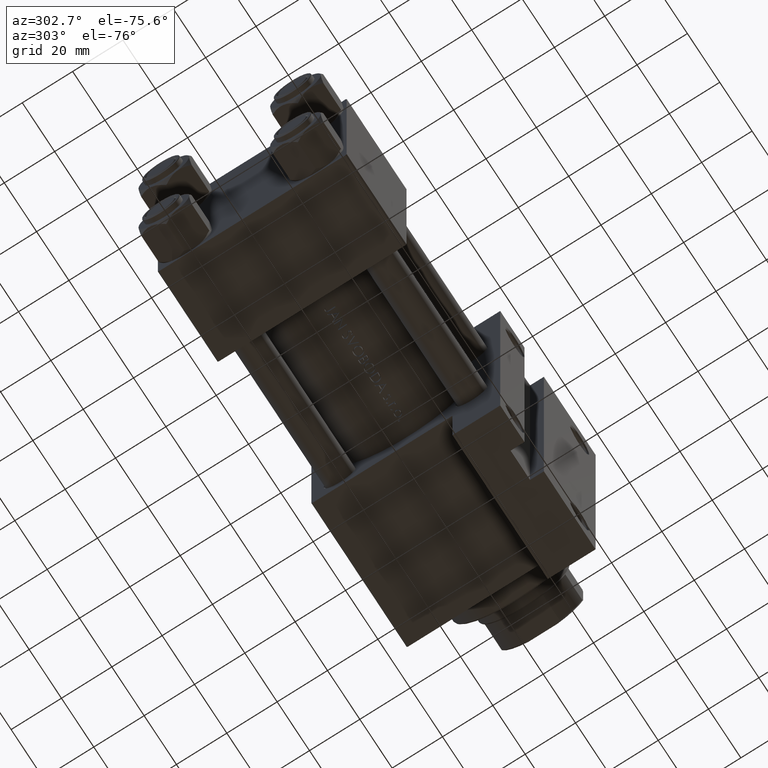
[diagram: clean part render]
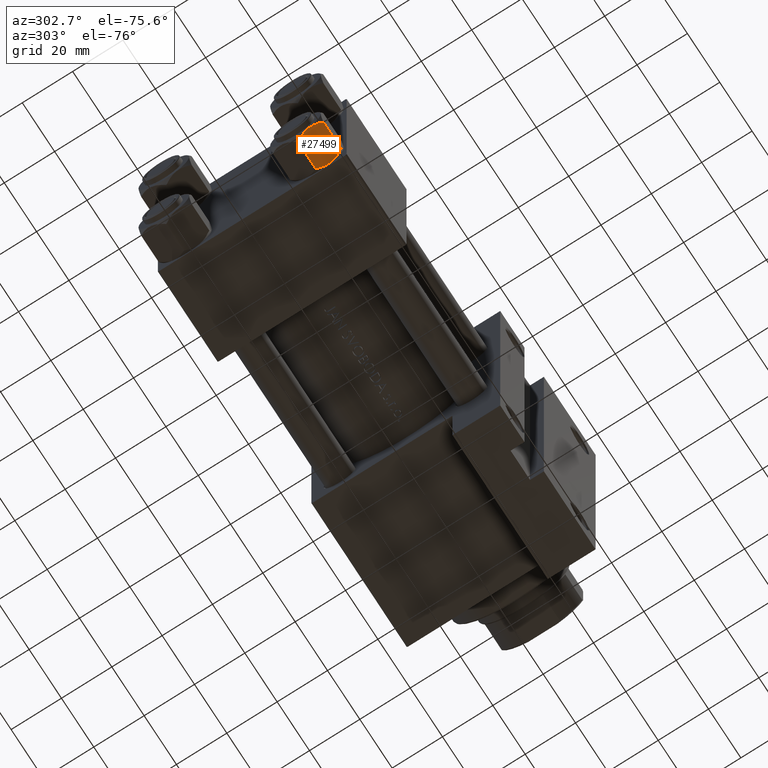
[diagram: same view with one face highlighted and labeled with its STEP entity id]
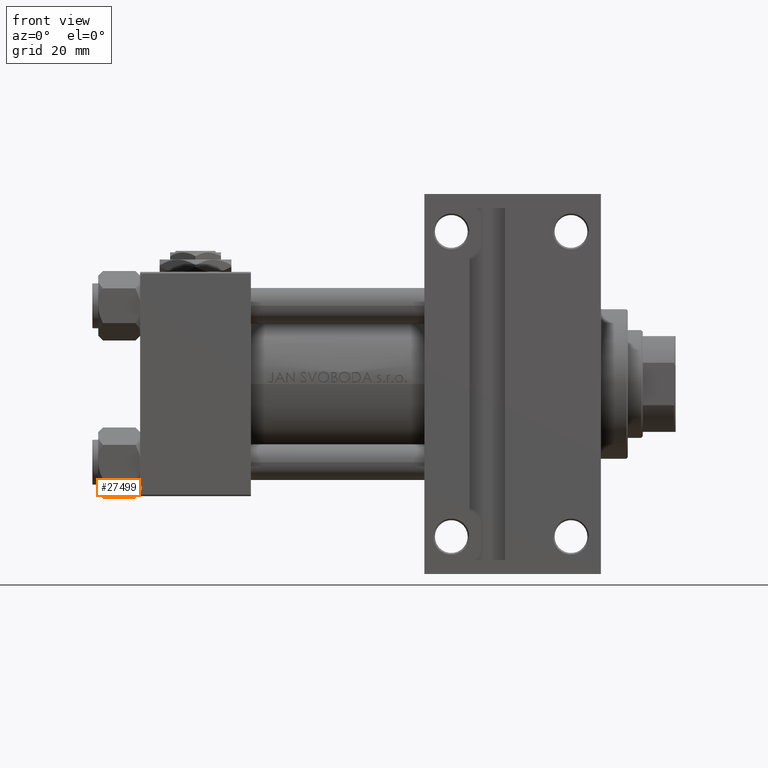
[diagram: same view with one face highlighted and labeled with its STEP entity id]
A machine part, auxiliary view. The second image highlights one B-rep face of the part: STEP entity #27499.
A second angle (front view) of the same face is appended — the face is thin or edge-on in the first view.
In plain terms, the highlighted planar face has unit normal (-0, 0.5, 0.866).
Its self-contained STEP definition (entity closure, byte-faithful):
#475 = CARTESIAN_POINT ( 'NONE',  ( 8.969430103550381617, 4.590921729663312689, 3.523657060577888622E-15 ) ) ;
#1361 = CARTESIAN_POINT ( 'NONE',  ( 5.810000000000000497, 10.06321519197518022, -12.44321519197518455 ) ) ;
#1862 = CARTESIAN_POINT ( 'NONE',  ( 8.715000000000005187, 5.031607595987590109, -14.00000000000000000 ) ) ;
#2401 = DIRECTION ( 'NONE',  ( -0.000000000000000000, -0.000000000000000000, 1.000000000000000000 ) ) ;
#3016 = B_SPLINE_CURVE_WITH_KNOTS ( 'NONE', 3,
 ( #12727, #9957, #13227, #32334, #28323, #32084 ),
 .UNSPECIFIED., .F., .F.,
 ( 4, 2, 4 ),
 ( 0.006022845781655588107, 0.009013049135303636758, 0.01200325248895168367 ),
 .UNSPECIFIED. ) ;
#4022 = CARTESIAN_POINT ( 'NONE',  ( 11.62000000000000099, -1.813166800014576593E-15, -14.00000000000000000 ) ) ;
#4417 = ORIENTED_EDGE ( 'NONE', *, *, #27831, .F. ) ;
#4478 = CARTESIAN_POINT ( 'NONE',  ( 11.62000000000000099, -1.924525737834042474E-15, -1.556784808024813893 ) ) ;
#4633 = CARTESIAN_POINT ( 'NONE',  ( 7.455303369716807182, 7.213466161761384221, -13.69973261901325934 ) ) ;
#4725 = VERTEX_POINT ( 'NONE', #15000 ) ;
#5451 = EDGE_CURVE ( 'NONE', #4725, #40461, #3016, .T. ) ;
#5541 = VERTEX_POINT ( 'NONE', #7428 ) ;
#5668 = AXIS2_PLACEMENT_3D ( 'NONE', #45379, #10940, #19002 ) ;
#6732 = CARTESIAN_POINT ( 'NONE',  ( 11.62000000000000099, -1.924525737834042474E-15, -1.556784808024813893 ) ) ;
#7428 = CARTESIAN_POINT ( 'NONE',  ( 8.715000000000005187, 5.031607595987590109, -14.00000000000000000 ) ) ;
#7504 = CARTESIAN_POINT ( 'NONE',  ( 9.729165168613654657, 3.275021996682081493, -0.1903979688073405840 ) ) ;
#9388 = CARTESIAN_POINT ( 'NONE',  ( 6.731401448974991375, 8.467301068182917945, -13.28585617404753627 ) ) ;
#9683 = VERTEX_POINT ( 'NONE', #40491 ) ;
#9815 = B_SPLINE_CURVE_WITH_KNOTS ( 'NONE', 3,
 ( #46020, #33948, #42734, #11585, #49286, #15357 ),
 .UNSPECIFIED., .F., .F.,
 ( 4, 2, 4 ),
 ( 0.006022845781655592444, 0.009013049135303636758, 0.01200325248895168194 ),
 .UNSPECIFIED. ) ;
#9957 = CARTESIAN_POINT ( 'NONE',  ( 8.209704053696576409, 5.906805847843727086, 3.430483436379916373E-15 ) ) ;
#10940 = DIRECTION ( 'NONE',  ( -0.8660254037844387076, -0.4999999999999998335, 0.000000000000000000 ) ) ;
#11585 = CARTESIAN_POINT ( 'NONE',  ( 10.69662495661650503, 1.599332489581333672, -13.28854452935655139 ) ) ;
#12727 = CARTESIAN_POINT ( 'NONE',  ( 8.715000000000005187, 5.031607595987590109, 0.000000000000000000 ) ) ;
#13227 = CARTESIAN_POINT ( 'NONE',  ( 7.713000053756307928, 6.767122412062951398, -0.1545239700039825748 ) ) ;
#15000 = CARTESIAN_POINT ( 'NONE',  ( 8.715000000000005187, 5.031607595987590109, 0.000000000000000000 ) ) ;
#15316 = CARTESIAN_POINT ( 'NONE',  ( 10.69859855102501278, 1.595914123792262718, -0.7141438259524649501 ) ) ;
#15357 = CARTESIAN_POINT ( 'NONE',  ( 11.62000000000000099, -1.689012838886770227E-15, -12.44321519197518633 ) ) ;
#16692 = CARTESIAN_POINT ( 'NONE',  ( 6.265545725125286403, 9.274186850887383926, -12.89876091710046957 ) ) ;
#17766 = VECTOR ( 'NONE', #42225, 1000.000000000000000 ) ;
#18841 = EDGE_CURVE ( 'NONE', #5541, #9683, #9815, .T. ) ;
#19002 = DIRECTION ( 'NONE',  ( 0.4999999999999998335, -0.8660254037844387076, 0.000000000000000000 ) ) ;
#20676 = CARTESIAN_POINT ( 'NONE',  ( 5.810000000000000497, 10.06321519197518022, -12.44321519197518455 ) ) ;
#21147 = EDGE_CURVE ( 'NONE', #32194, #4725, #42663, .T. ) ;
#22250 = PLANE ( 'NONE',  #5668 ) ;
#23284 = ORIENTED_EDGE ( 'NONE', *, *, #21147, .F. ) ;
#23366 = LINE ( 'NONE', #4022, #17766 ) ;
#25934 = ORIENTED_EDGE ( 'NONE', *, *, #5451, .F. ) ;
#26562 = ORIENTED_EDGE ( 'NONE', *, *, #18841, .F. ) ;
#27499 = ADVANCED_FACE ( 'NONE', ( #30301 ), #22250, .F. ) ;
#27604 = CARTESIAN_POINT ( 'NONE',  ( 11.16445427487472131, 0.7890283410877956261, -1.101239082899531985 ) ) ;
#27763 = CARTESIAN_POINT ( 'NONE',  ( 7.700834831386345058, 6.788193195293094284, -13.80960203119265906 ) ) ;
#27831 = EDGE_CURVE ( 'NONE', #9683, #32194, #23366, .T. ) ;
#28251 = B_SPLINE_CURVE_WITH_KNOTS ( 'NONE', 3,
 ( #1361, #16692, #9388, #4633, #27763, #43091, #32022, #1862 ),
 .UNSPECIFIED., .F., .F.,
 ( 4, 2, 2, 4 ),
 ( 2.544312114902182352E-07, 0.003011550106433542526, 0.004517197944044567919, 0.006022845781655592444 ),
 .UNSPECIFIED. ) ;
#28323 = CARTESIAN_POINT ( 'NONE',  ( 6.265018354709773973, 9.275100283241448196, -1.101766453314953154 ) ) ;
#29053 = CARTESIAN_POINT ( 'NONE',  ( 5.810000000000000497, 10.06321519197518022, -14.00000000000000000 ) ) ;
#29104 = ORIENTED_EDGE ( 'NONE', *, *, #29442, .F. ) ;
#29442 = EDGE_CURVE ( 'NONE', #39375, #5541, #28251, .T. ) ;
#30301 = FACE_OUTER_BOUND ( 'NONE', #32116, .T. ) ;
#30665 = CARTESIAN_POINT ( 'NONE',  ( 9.974696630283190757, 2.849749030213792000, -0.3002673809867367205 ) ) ;
#31386 = CARTESIAN_POINT ( 'NONE',  ( 9.227666995912102266, 4.143642311704121894, -0.03994118060690670519 ) ) ;
#32022 = CARTESIAN_POINT ( 'NONE',  ( 8.460569896449618099, 5.472293462311861312, -14.00000000000000000 ) ) ;
#32084 = CARTESIAN_POINT ( 'NONE',  ( 5.810000000000000497, 10.06321519197518022, -1.556784808024815892 ) ) ;
#32116 = EDGE_LOOP ( 'NONE', ( #29104, #40241, #25934, #23284, #4417, #26562 ) ) ;
#32194 = VERTEX_POINT ( 'NONE', #6732 ) ;
#32334 = CARTESIAN_POINT ( 'NONE',  ( 6.733375043383499126, 8.463882702393844326, -0.7114554706434494946 ) ) ;
#32805 = LINE ( 'NONE', #29053, #39279 ) ;
#33948 = CARTESIAN_POINT ( 'NONE',  ( 9.220295946303432189, 4.156409344131451356, -14.00000000000000178 ) ) ;
#39279 = VECTOR ( 'NONE', #2401, 1000.000000000000000 ) ;
#39375 = VERTEX_POINT ( 'NONE', #20676 ) ;
#40241 = ORIENTED_EDGE ( 'NONE', *, *, #43501, .T. ) ;
#40461 = VERTEX_POINT ( 'NONE', #42270 ) ;
#40491 = CARTESIAN_POINT ( 'NONE',  ( 11.62000000000000099, -1.689012838886770227E-15, -12.44321519197518633 ) ) ;
#42225 = DIRECTION ( 'NONE',  ( -0.000000000000000000, -0.000000000000000000, 1.000000000000000000 ) ) ;
#42270 = CARTESIAN_POINT ( 'NONE',  ( 5.810000000000000497, 10.06321519197518022, -1.556784808024815892 ) ) ;
#42663 = B_SPLINE_CURVE_WITH_KNOTS ( 'NONE', 3,
 ( #4478, #27604, #15316, #30665, #7504, #31386, #475, #45978 ),
 .UNSPECIFIED., .F., .F.,
 ( 4, 2, 2, 4 ),
 ( 2.544312114903581015E-07, 0.003011550106433540791, 0.004517197944044564449, 0.006022845781655588107 ),
 .UNSPECIFIED. ) ;
#42734 = CARTESIAN_POINT ( 'NONE',  ( 9.716999946243698005, 3.296092779912226156, -13.84547602999602134 ) ) ;
#43091 = CARTESIAN_POINT ( 'NONE',  ( 8.202333004087901003, 5.919572880271053883, -13.96005881939309567 ) ) ;
#43501 = EDGE_CURVE ( 'NONE', #39375, #40461, #32805, .T. ) ;
#45379 = CARTESIAN_POINT ( 'NONE',  ( 5.810000000000000497, 10.06321519197518022, -14.00000000000000000 ) ) ;
#45978 = CARTESIAN_POINT ( 'NONE',  ( 8.715000000000005187, 5.031607595987590109, 0.000000000000000000 ) ) ;
#46020 = CARTESIAN_POINT ( 'NONE',  ( 8.715000000000005187, 5.031607595987590109, -14.00000000000000000 ) ) ;
#49286 = CARTESIAN_POINT ( 'NONE',  ( 11.16498164529022574, 0.7881149087337292469, -12.89823354668504862 ) ) ;